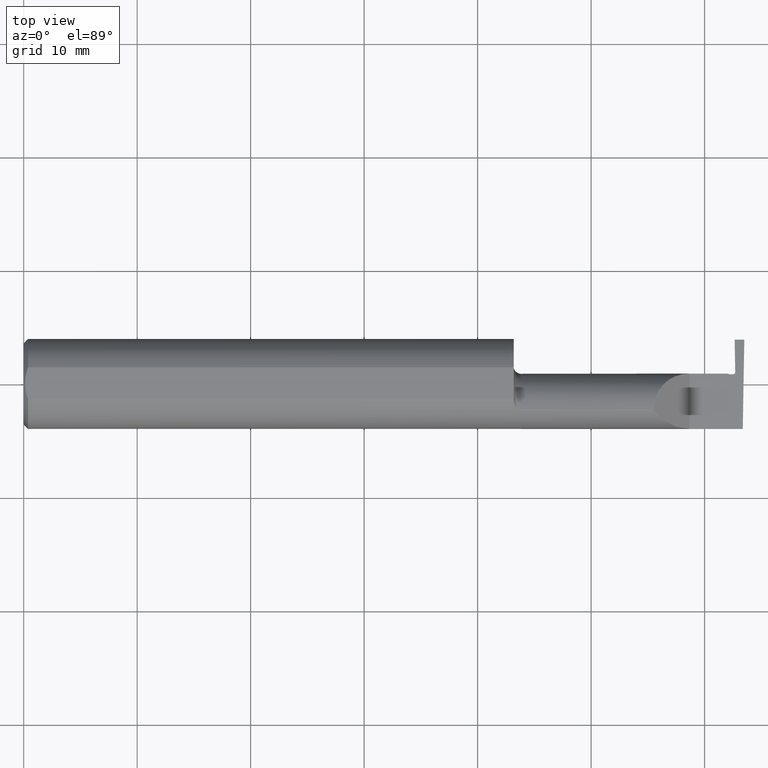
[diagram: clean part render]
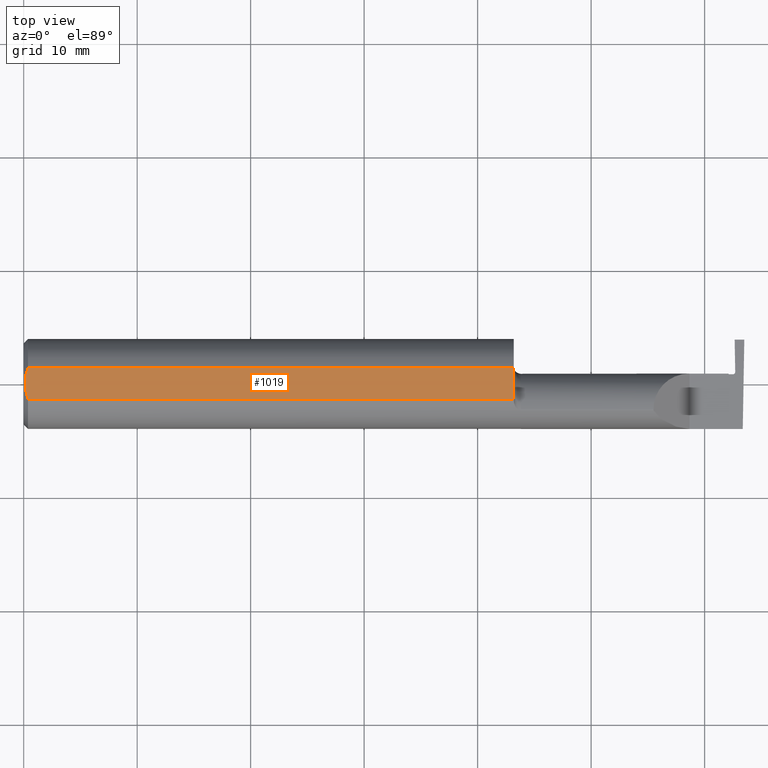
[diagram: same view with one face highlighted and labeled with its STEP entity id]
A machine part, top view. The second image highlights one B-rep face of the part: STEP entity #1019.
In plain terms, the highlighted planar face has unit normal (0, -0, 1).
Its self-contained STEP definition (entity closure, byte-faithful):
#26 = EDGE_CURVE ( 'NONE', #267, #1007, #270, .T. ) ;
#70 = CARTESIAN_POINT ( 'NONE',  ( 0.005910707775482238607, -0.01866948012536270504, 0.1461000000000000076 ) ) ;
#93 = CARTESIAN_POINT ( 'NONE',  ( 0.009356849677355947789, -0.03706298561014172849, 0.1460999999999999799 ) ) ;
#97 = VECTOR ( 'NONE', #106, 39.37007874015748143 ) ;
#106 = DIRECTION ( 'NONE',  ( -0.000000000000000000, 1.000000000000000000, 0.000000000000000000 ) ) ;
#127 = CARTESIAN_POINT ( 'NONE',  ( 1.699999999999999956, 0.05497272050753900657, 0.1460999999999999799 ) ) ;
#147 = AXIS2_PLACEMENT_3D ( 'NONE', #255, #583, #577 ) ;
#169 = CARTESIAN_POINT ( 'NONE',  ( 0.01190375560897317594, -0.04618065518901644934, 0.1460999999999999799 ) ) ;
#199 = LINE ( 'NONE', #782, #97 ) ;
#240 = CARTESIAN_POINT ( 'NONE',  ( 0.01499999999999999944, -0.05497272050753900657, 0.1460999999999999799 ) ) ;
#255 = CARTESIAN_POINT ( 'NONE',  ( 2.500000000000000000, -0.1561000000000000165, 0.1460999999999999799 ) ) ;
#267 = VERTEX_POINT ( 'NONE', #127 ) ;
#270 = LINE ( 'NONE', #508, #398 ) ;
#296 = VERTEX_POINT ( 'NONE', #459 ) ;
#297 = CARTESIAN_POINT ( 'NONE',  ( 0.01499999999999999771, 0.05497272050753900657, 0.1460999999999999799 ) ) ;
#321 = CARTESIAN_POINT ( 'NONE',  ( 0.000000000000000000, -0.05497272050753900657, 0.1460999999999999799 ) ) ;
#398 = VECTOR ( 'NONE', #936, 39.37007874015748143 ) ;
#459 = CARTESIAN_POINT ( 'NONE',  ( 0.004999999999999936787, 2.057148927093534050E-17, 0.1460999999999999799 ) ) ;
#467 = EDGE_LOOP ( 'NONE', ( #523, #705, #535, #768, #694 ) ) ;
#474 = CARTESIAN_POINT ( 'NONE',  ( 0.009371209226503902576, 0.03711161584255317364, 0.1461000000000000076 ) ) ;
#491 = PLANE ( 'NONE',  #147 ) ;
#503 = DIRECTION ( 'NONE',  ( 1.000000000000000000, 0.000000000000000000, 0.000000000000000000 ) ) ;
#508 = CARTESIAN_POINT ( 'NONE',  ( 0.000000000000000000, 0.05497272050753900657, 0.1460999999999999799 ) ) ;
#523 = ORIENTED_EDGE ( 'NONE', *, *, #1033, .T. ) ;
#528 = EDGE_CURVE ( 'NONE', #296, #822, #530, .T. ) ;
#530 = B_SPLINE_CURVE_WITH_KNOTS ( 'NONE', 3,
 ( #586, #921, #70, #93, #169, #910 ),
 .UNSPECIFIED., .F., .F.,
 ( 4, 2, 4 ),
 ( 0.004704317630101885993, 0.005408659995628783967, 0.006113002361155681942 ),
 .UNSPECIFIED. ) ;
#535 = ORIENTED_EDGE ( 'NONE', *, *, #26, .T. ) ;
#577 = DIRECTION ( 'NONE',  ( 1.000000000000000000, 0.000000000000000000, -0.000000000000000000 ) ) ;
#583 = DIRECTION ( 'NONE',  ( 0.000000000000000000, -0.000000000000000000, 1.000000000000000000 ) ) ;
#586 = CARTESIAN_POINT ( 'NONE',  ( 0.004999999999999936787, 2.057148927093534050E-17, 0.1460999999999999799 ) ) ;
#627 = CARTESIAN_POINT ( 'NONE',  ( 0.01187749995209270472, 0.04610609988228752537, 0.1460999999999999799 ) ) ;
#641 = CARTESIAN_POINT ( 'NONE',  ( 0.005929349363808920914, 0.01879672308419500643, 0.1460999999999999799 ) ) ;
#645 = EDGE_CURVE ( 'NONE', #736, #267, #199, .T. ) ;
#694 = ORIENTED_EDGE ( 'NONE', *, *, #528, .T. ) ;
#705 = ORIENTED_EDGE ( 'NONE', *, *, #645, .T. ) ;
#726 = EDGE_CURVE ( 'NONE', #1007, #296, #785, .T. ) ;
#736 = VERTEX_POINT ( 'NONE', #1049 ) ;
#745 = FACE_OUTER_BOUND ( 'NONE', #467, .T. ) ;
#768 = ORIENTED_EDGE ( 'NONE', *, *, #726, .T. ) ;
#782 = CARTESIAN_POINT ( 'NONE',  ( 1.699999999999999956, -0.1561000000000000165, 0.1460999999999999799 ) ) ;
#785 = B_SPLINE_CURVE_WITH_KNOTS ( 'NONE', 3,
 ( #297, #627, #474, #641, #812, #970 ),
 .UNSPECIFIED., .F., .F.,
 ( 4, 2, 4 ),
 ( 0.003294562426666346362, 0.003999440028384116178, 0.004704317630101885993 ),
 .UNSPECIFIED. ) ;
#812 = CARTESIAN_POINT ( 'NONE',  ( 0.004999999999999902960, 0.009391435229055663386, 0.1460999999999999799 ) ) ;
#822 = VERTEX_POINT ( 'NONE', #240 ) ;
#847 = LINE ( 'NONE', #321, #994 ) ;
#910 = CARTESIAN_POINT ( 'NONE',  ( 0.01499999999999999944, -0.05497272050753900657, 0.1460999999999999799 ) ) ;
#921 = CARTESIAN_POINT ( 'NONE',  ( 0.004999999999999897755, -0.009384304010803548590, 0.1460999999999999521 ) ) ;
#936 = DIRECTION ( 'NONE',  ( -1.000000000000000000, -0.000000000000000000, -0.000000000000000000 ) ) ;
#970 = CARTESIAN_POINT ( 'NONE',  ( 0.004999999999999936787, 2.057148927093534050E-17, 0.1460999999999999799 ) ) ;
#994 = VECTOR ( 'NONE', #503, 39.37007874015748143 ) ;
#1007 = VERTEX_POINT ( 'NONE', #1086 ) ;
#1019 = ADVANCED_FACE ( 'NONE', ( #745 ), #491, .T. ) ;
#1033 = EDGE_CURVE ( 'NONE', #822, #736, #847, .T. ) ;
#1049 = CARTESIAN_POINT ( 'NONE',  ( 1.699999999999999956, -0.05497272050753899270, 0.1460999999999999799 ) ) ;
#1086 = CARTESIAN_POINT ( 'NONE',  ( 0.01499999999999999771, 0.05497272050753900657, 0.1460999999999999799 ) ) ;